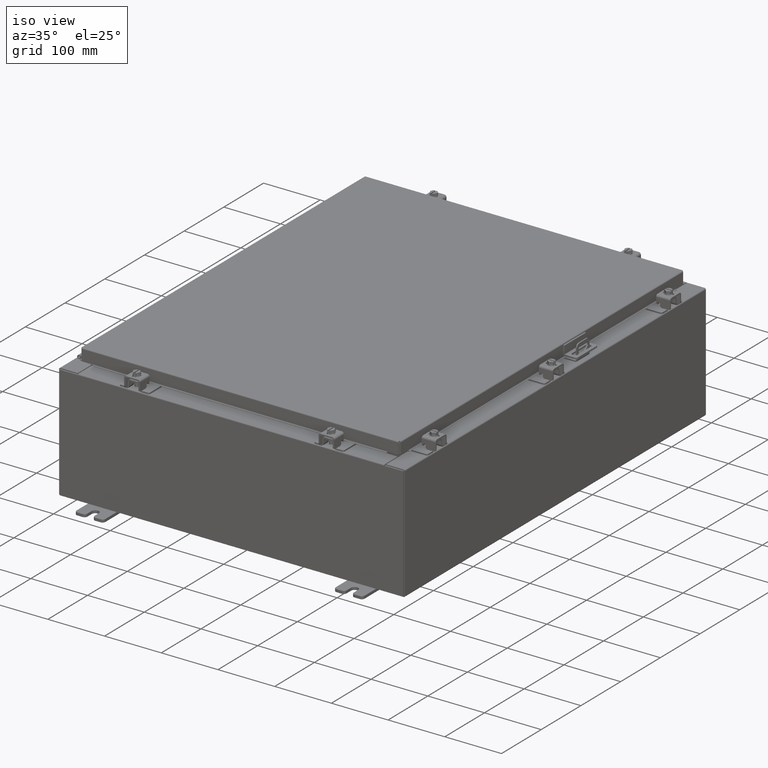
[diagram: clean part render]
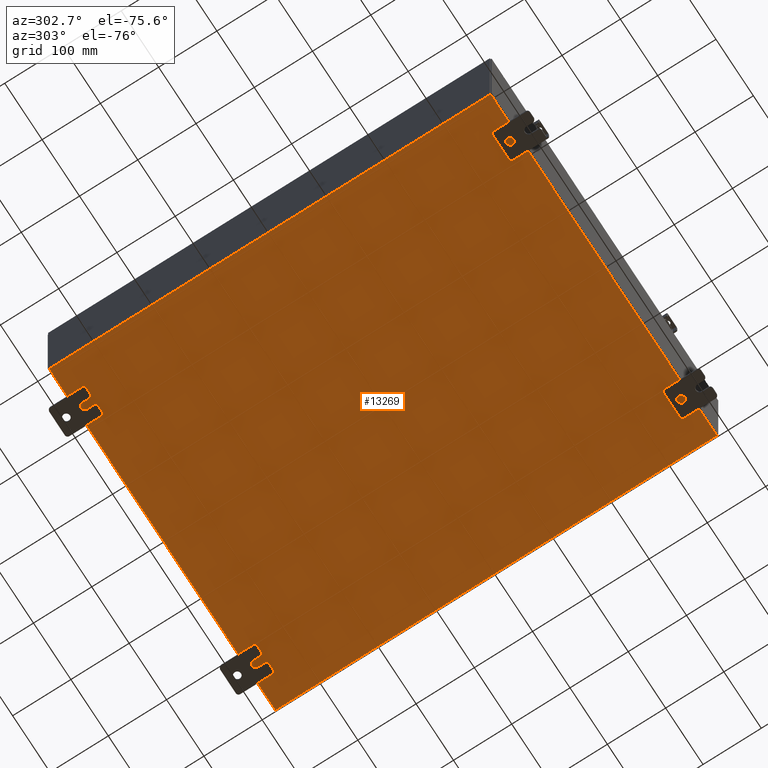
[diagram: tour spotlight — one face highlighted and labeled with its STEP entity id]
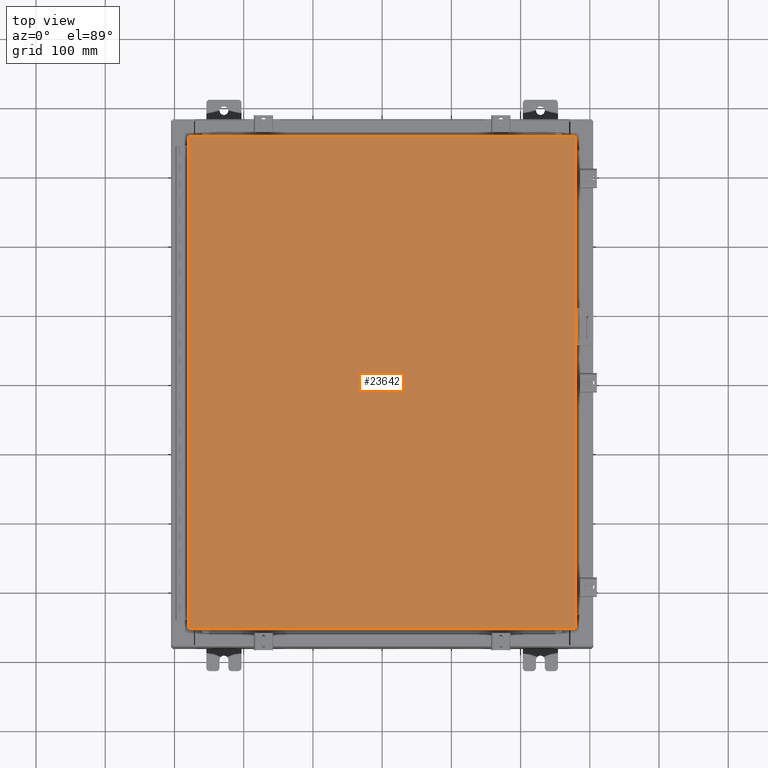
[diagram: tour spotlight — one face highlighted and labeled with its STEP entity id]
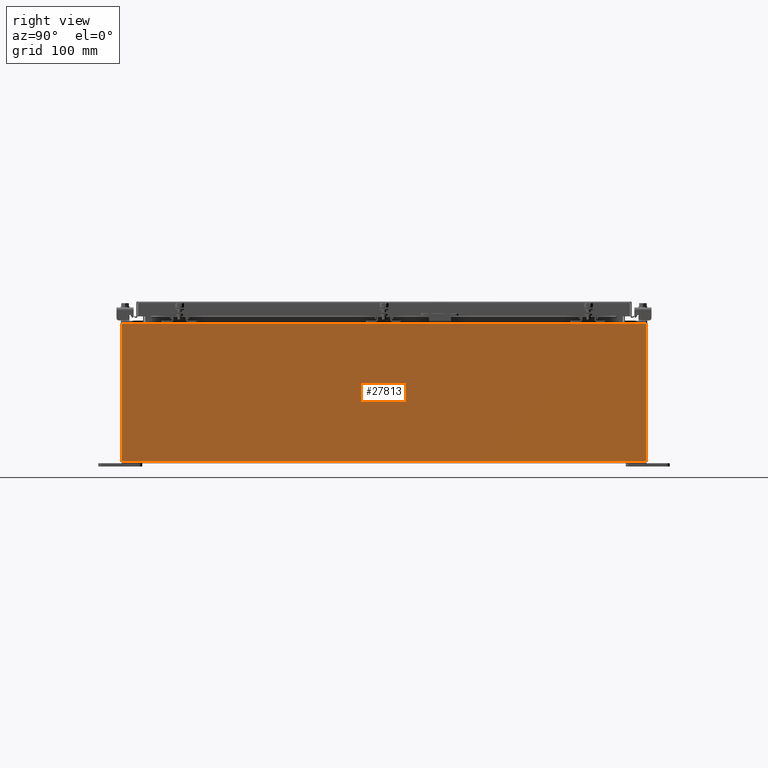
[diagram: tour spotlight — one face highlighted and labeled with its STEP entity id]
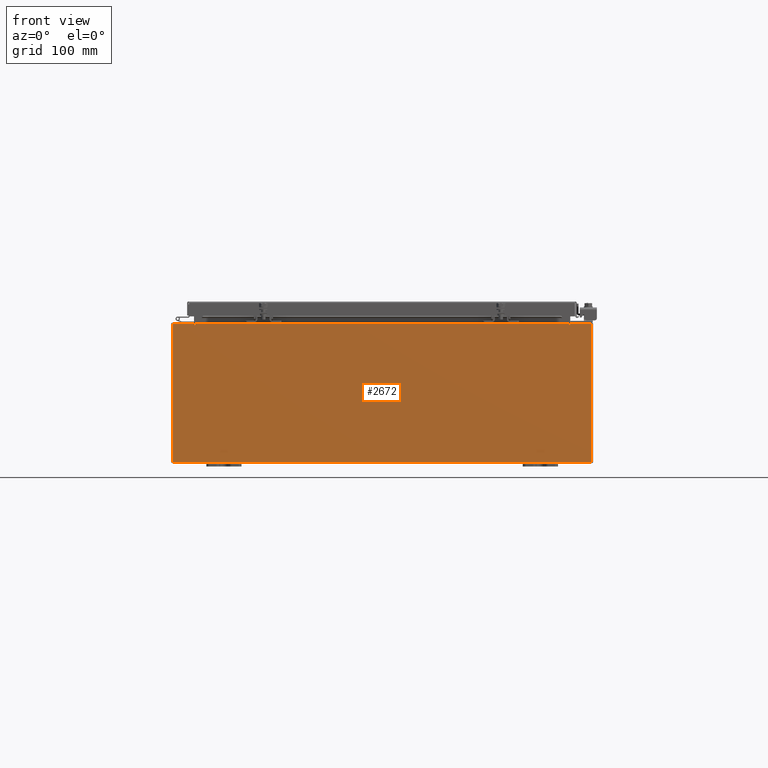
[diagram: tour spotlight — one face highlighted and labeled with its STEP entity id]
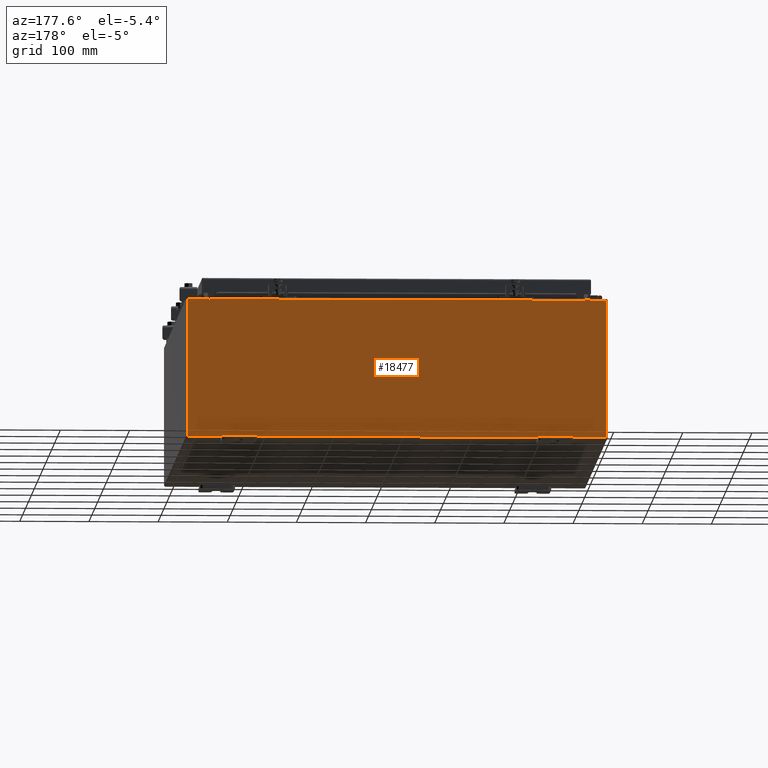
[diagram: tour spotlight — one face highlighted and labeled with its STEP entity id]
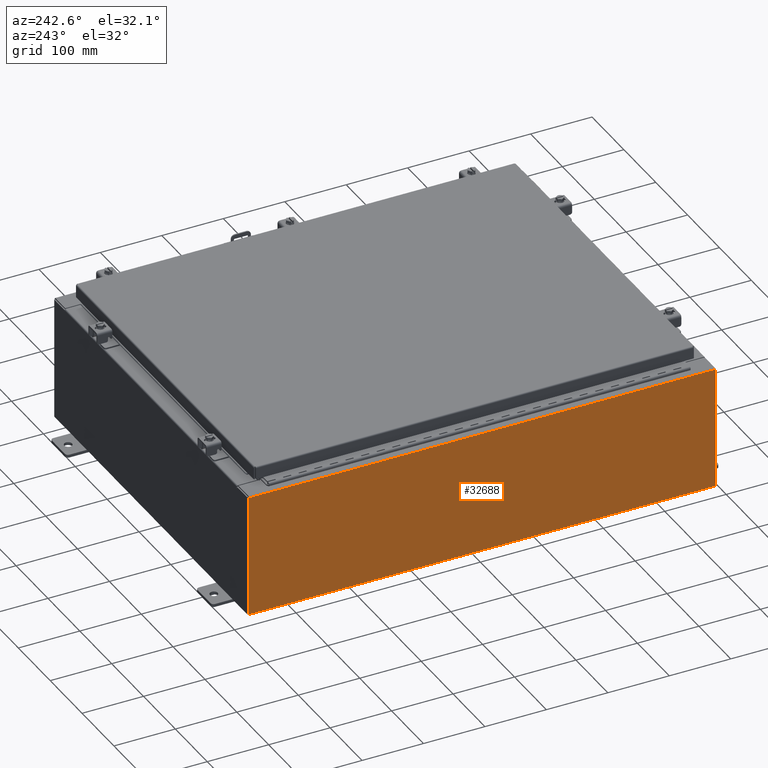
[diagram: tour spotlight — one face highlighted and labeled with its STEP entity id]
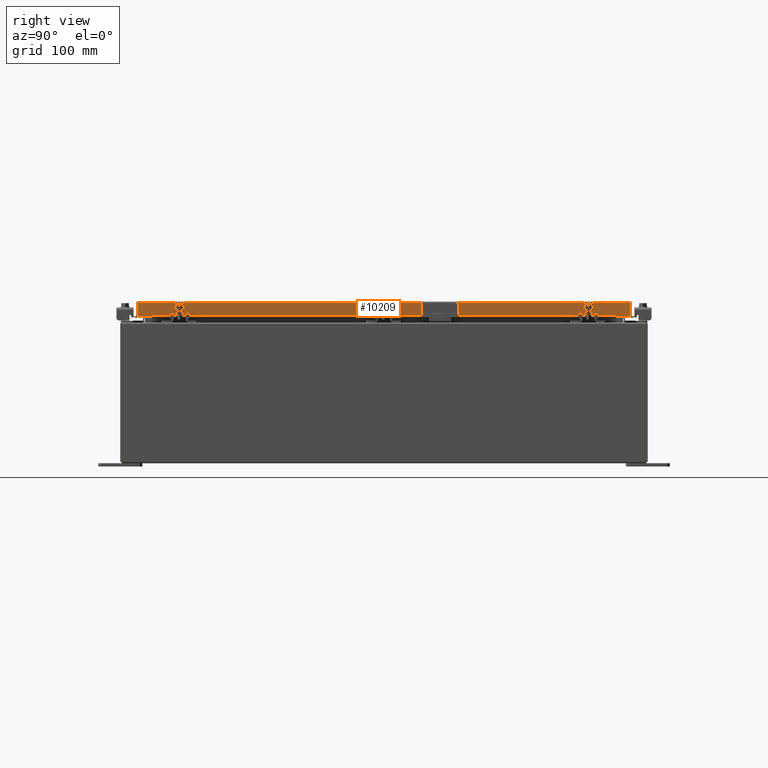
[diagram: tour spotlight — one face highlighted and labeled with its STEP entity id]
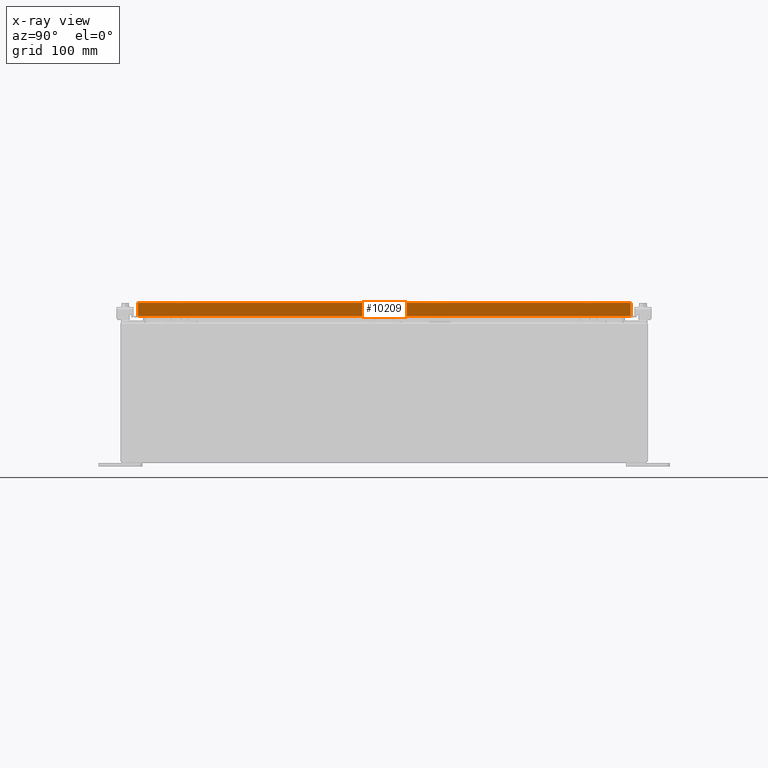
[diagram: x-ray of the same camera — body ghosted, this tour face saturated]
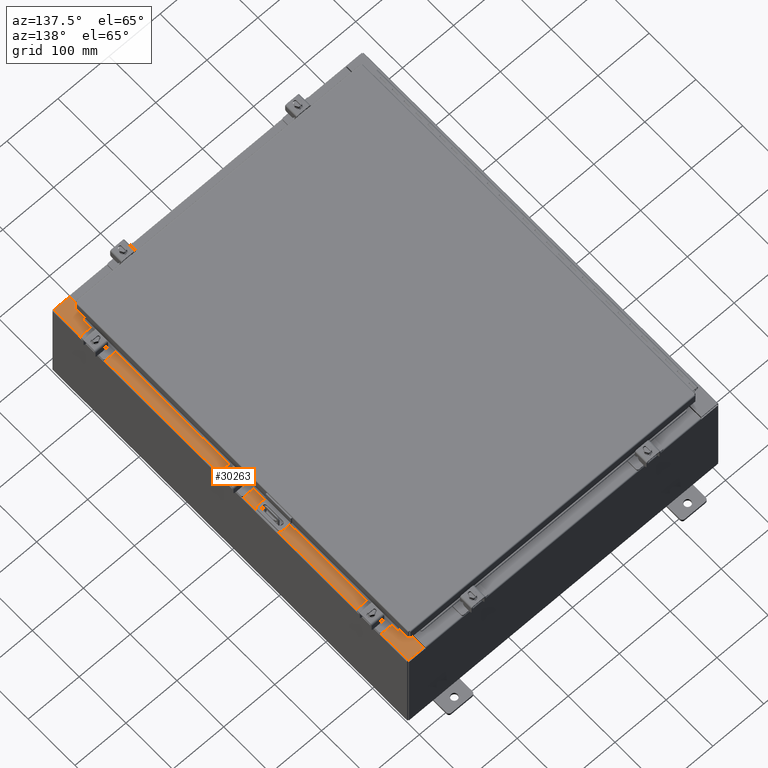
[diagram: tour spotlight — one face highlighted and labeled with its STEP entity id]
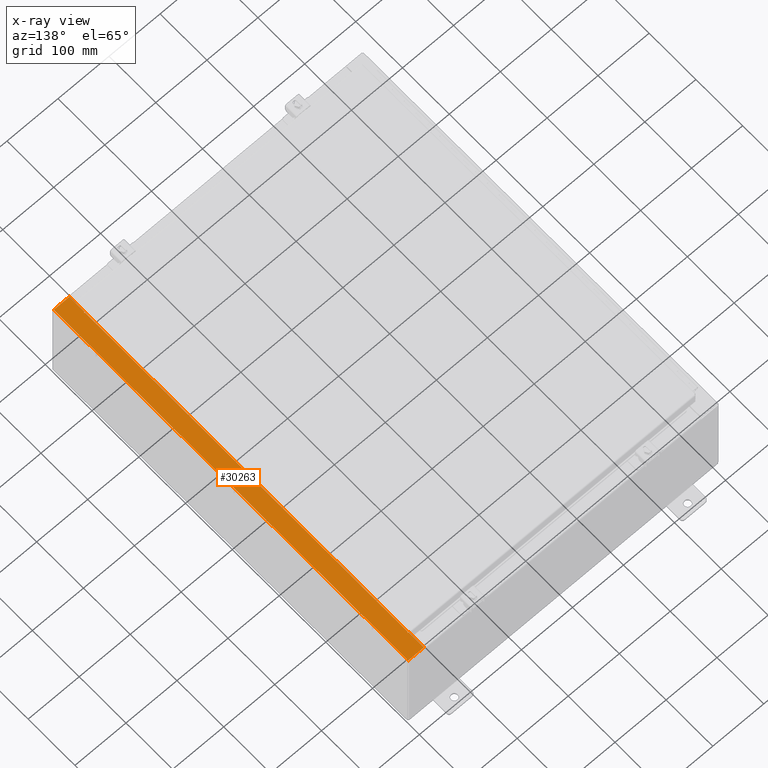
[diagram: x-ray of the same camera — body ghosted, this tour face saturated]
A machine part: a face-by-face anatomy tour. The part has 1990 B-rep faces; the first image is the clean iso view, then the 8 largest visible faces are spotlighted one at a time (largest first), each with its STEP entity span.

Face 1 — auxiliary view, entity #13269. In plain terms, the highlighted planar face has unit normal (0, 0, -1).
Definition (entity closure, byte-faithful):
#5635 = VECTOR ( 'NONE', #18119, 39.37007874015748100 ) ;
#7331 = VECTOR ( 'NONE', #32122, 39.37007874015748100 ) ;
#7362 = VERTEX_POINT ( 'NONE', #33863 ) ;
#7889 = FACE_OUTER_BOUND ( 'NONE', #21383, .T. ) ;
#8225 = LINE ( 'NONE', #36847, #7331 ) ;
#8766 = CARTESIAN_POINT ( 'NONE',  ( 0.0000000000000000000, 0.0000000000000000000, -0.07470000000000000300 ) ) ;
#9982 = ORIENTED_EDGE ( 'NONE', *, *, #27992, .F. ) ;
#11927 = DIRECTION ( 'NONE',  ( 1.000000000000000000, 0.0000000000000000000, 0.0000000000000000000 ) ) ;
#13269 = ADVANCED_FACE ( 'NONE', ( #7889 ), #26249, .T. ) ;
#13560 = LINE ( 'NONE', #26574, #27247 ) ;
#15827 = CARTESIAN_POINT ( 'NONE',  ( 11.91229999999999700, 14.92530000000000000, -0.07470000000000226500 ) ) ;
#16068 = CARTESIAN_POINT ( 'NONE',  ( 11.91229999999998800, -14.92530000000000000, -0.07470000000000000300 ) ) ;
#16945 = CARTESIAN_POINT ( 'NONE',  ( -11.91230000000000500, 14.92530000000000000, -0.07470000000000000300 ) ) ;
#18119 = DIRECTION ( 'NONE',  ( -1.000000000000000000, -0.0000000000000000000, -0.0000000000000000000 ) ) ;
#18244 = CARTESIAN_POINT ( 'NONE',  ( -12.00000000000000500, 14.92530000000000000, -0.07470000000000000300 ) ) ;
#18343 = ORIENTED_EDGE ( 'NONE', *, *, #34294, .T. ) ;
#18700 = VERTEX_POINT ( 'NONE', #16068 ) ;
#19879 = CARTESIAN_POINT ( 'NONE',  ( 11.91229999999999700, 14.92530000000000000, -0.07470000000000226500 ) ) ;
#19899 = EDGE_CURVE ( 'NONE', #7362, #25669, #8225, .T. ) ;
#21383 = EDGE_LOOP ( 'NONE', ( #31003, #37043, #9982, #18343 ) ) ;
#25669 = VERTEX_POINT ( 'NONE', #16945 ) ;
#26133 = DIRECTION ( 'NONE',  ( -1.000000000000000000, 0.0000000000000000000, -0.0000000000000000000 ) ) ;
#26248 = AXIS2_PLACEMENT_3D ( 'NONE', #8766, #29076, #26133 ) ;
#26249 = PLANE ( 'NONE',  #26248 ) ;
#26574 = CARTESIAN_POINT ( 'NONE',  ( -12.00000000000000500, -14.92530000000000000, -0.07470000000000000300 ) ) ;
#27247 = VECTOR ( 'NONE', #11927, 39.37007874015748100 ) ;
#27992 = EDGE_CURVE ( 'NONE', #28855, #25669, #35626, .T. ) ;
#28855 = VERTEX_POINT ( 'NONE', #15827 ) ;
#29076 = DIRECTION ( 'NONE',  ( 0.0000000000000000000, 0.0000000000000000000, -1.000000000000000000 ) ) ;
#31003 = ORIENTED_EDGE ( 'NONE', *, *, #32423, .F. ) ;
#32122 = DIRECTION ( 'NONE',  ( -0.0000000000000000000, 1.000000000000000000, -0.0000000000000000000 ) ) ;
#32423 = EDGE_CURVE ( 'NONE', #7362, #18700, #13560, .T. ) ;
#33863 = CARTESIAN_POINT ( 'NONE',  ( -11.91230000000000500, -14.92530000000000000, -0.07469999999999994700 ) ) ;
#34294 = EDGE_CURVE ( 'NONE', #28855, #18700, #36650, .T. ) ;
#35626 = LINE ( 'NONE', #18244, #5635 ) ;
#35790 = VECTOR ( 'NONE', #37293, 39.37007874015748100 ) ;
#36650 = LINE ( 'NONE', #19879, #35790 ) ;
#36847 = CARTESIAN_POINT ( 'NONE',  ( -11.91230000000000500, -14.92530000000000000, -0.07469999999999994700 ) ) ;
#37043 = ORIENTED_EDGE ( 'NONE', *, *, #19899, .T. ) ;
#37293 = DIRECTION ( 'NONE',  ( -0.0000000000000000000, -1.000000000000000000, 8.208677865577646300E-017 ) ) ;

Face 2 — top view, entity #23642. In plain terms, the highlighted planar face has unit normal (0, 0, -1).
Definition (entity closure, byte-faithful):
#1846 = DIRECTION ( 'NONE',  ( 1.000000000000000000, -0.0000000000000000000, -0.0000000000000000000 ) ) ;
#3510 = CARTESIAN_POINT ( 'NONE',  ( 10.99030000000000000, -14.00629999999999800, -2.048885995248197400E-016 ) ) ;
#4643 = CARTESIAN_POINT ( 'NONE',  ( -10.99030000000000000, 14.00630000000000100, -2.048885995248197400E-016 ) ) ;
#4808 = ORIENTED_EDGE ( 'NONE', *, *, #12048, .T. ) ;
#4845 = EDGE_LOOP ( 'NONE', ( #4808, #22974, #30911, #36598 ) ) ;
#4901 = VECTOR ( 'NONE', #19019, 39.37007874015748100 ) ;
#5202 = CARTESIAN_POINT ( 'NONE',  ( -10.99029999999999800, -14.00629999999999800, -2.048885995248197400E-016 ) ) ;
#5971 = CARTESIAN_POINT ( 'NONE',  ( 0.0000000000000000000, 0.0000000000000000000, 0.0000000000000000000 ) ) ;
#6256 = CARTESIAN_POINT ( 'NONE',  ( -10.99030000000000000, 14.00630000000000100, -2.048885995248197400E-016 ) ) ;
#6614 = VECTOR ( 'NONE', #12503, 39.37007874015748100 ) ;
#6708 = VERTEX_POINT ( 'NONE', #3510 ) ;
#7438 = LINE ( 'NONE', #31551, #29696 ) ;
#7807 = VECTOR ( 'NONE', #1846, 39.37007874015748100 ) ;
#8172 = EDGE_CURVE ( 'NONE', #6708, #36905, #37440, .T. ) ;
#11165 = DIRECTION ( 'NONE',  ( -1.000000000000000000, -0.0000000000000000000, -0.0000000000000000000 ) ) ;
#11711 = CARTESIAN_POINT ( 'NONE',  ( 10.99030000000000000, 14.00629999999999800, -2.048885995248197400E-016 ) ) ;
#12048 = EDGE_CURVE ( 'NONE', #34667, #6708, #17255, .T. ) ;
#12503 = DIRECTION ( 'NONE',  ( 0.0000000000000000000, 1.000000000000000000, 0.0000000000000000000 ) ) ;
#16015 = CARTESIAN_POINT ( 'NONE',  ( -10.99029999999999600, -14.00629999999999800, -2.219626494852214000E-016 ) ) ;
#17255 = LINE ( 'NONE', #16015, #7807 ) ;
#17270 = DIRECTION ( 'NONE',  ( -1.000000000000000000, 0.0000000000000000000, -0.0000000000000000000 ) ) ;
#19019 = DIRECTION ( 'NONE',  ( 0.0000000000000000000, -1.000000000000000000, 0.0000000000000000000 ) ) ;
#20265 = LINE ( 'NONE', #4643, #4901 ) ;
#22749 = PLANE ( 'NONE',  #30798 ) ;
#22892 = FACE_OUTER_BOUND ( 'NONE', #4845, .T. ) ;
#22974 = ORIENTED_EDGE ( 'NONE', *, *, #8172, .T. ) ;
#23642 = ADVANCED_FACE ( 'NONE', ( #22892 ), #22749, .F. ) ;
#25485 = EDGE_CURVE ( 'NONE', #25659, #34667, #20265, .T. ) ;
#25659 = VERTEX_POINT ( 'NONE', #6256 ) ;
#26103 = CARTESIAN_POINT ( 'NONE',  ( 10.99030000000000000, -14.00629999999999800, -2.048885995248197400E-016 ) ) ;
#26237 = DIRECTION ( 'NONE',  ( 0.0000000000000000000, 0.0000000000000000000, -1.000000000000000000 ) ) ;
#27922 = EDGE_CURVE ( 'NONE', #36905, #25659, #7438, .T. ) ;
#29696 = VECTOR ( 'NONE', #11165, 39.37007874015748100 ) ;
#30798 = AXIS2_PLACEMENT_3D ( 'NONE', #5971, #26237, #17270 ) ;
#30911 = ORIENTED_EDGE ( 'NONE', *, *, #27922, .T. ) ;
#31551 = CARTESIAN_POINT ( 'NONE',  ( 10.99030000000000000, 14.00629999999999800, -2.048885995248197400E-016 ) ) ;
#34667 = VERTEX_POINT ( 'NONE', #5202 ) ;
#36598 = ORIENTED_EDGE ( 'NONE', *, *, #25485, .T. ) ;
#36905 = VERTEX_POINT ( 'NONE', #11711 ) ;
#37440 = LINE ( 'NONE', #26103, #6614 ) ;

Face 3 — right view, entity #27813. In plain terms, the highlighted planar face has unit normal (-1, 0, 0).
Definition (entity closure, byte-faithful):
#230 = DIRECTION ( 'NONE',  ( 3.584876173029202900E-015, 0.0000000000000000000, 1.000000000000000000 ) ) ;
#2361 = VECTOR ( 'NONE', #17244, 39.37007874015748100 ) ;
#3961 = CARTESIAN_POINT ( 'NONE',  ( 12.00000000000002500, 14.92530000000000200, 7.837599999999992100 ) ) ;
#5976 = CARTESIAN_POINT ( 'NONE',  ( 11.99999999999999600, 0.0000000000000000000, -4.327932773236200000E-014 ) ) ;
#7873 = ORIENTED_EDGE ( 'NONE', *, *, #12077, .T. ) ;
#7881 = VECTOR ( 'NONE', #29414, 39.37007874015748100 ) ;
#8873 = DIRECTION ( 'NONE',  ( -1.000000000000000000, 0.0000000000000000000, 3.584876173029202900E-015 ) ) ;
#9447 = VERTEX_POINT ( 'NONE', #36854 ) ;
#11954 = CARTESIAN_POINT ( 'NONE',  ( 11.99999999999999600, -14.92530000000000000, 0.01299999999999984700 ) ) ;
#12077 = EDGE_CURVE ( 'NONE', #17195, #24470, #30053, .T. ) ;
#12252 = EDGE_LOOP ( 'NONE', ( #25494, #7873, #32092, #36766 ) ) ;
#12488 = DIRECTION ( 'NONE',  ( -0.0000000000000000000, -1.000000000000000000, -0.0000000000000000000 ) ) ;
#13037 = EDGE_CURVE ( 'NONE', #9447, #17195, #14438, .T. ) ;
#13610 = VECTOR ( 'NONE', #31382, 39.37007874015748100 ) ;
#14438 = LINE ( 'NONE', #3961, #29982 ) ;
#16084 = AXIS2_PLACEMENT_3D ( 'NONE', #5976, #8873, #230 ) ;
#17195 = VERTEX_POINT ( 'NONE', #24434 ) ;
#17244 = DIRECTION ( 'NONE',  ( 3.584876173029202900E-015, 0.0000000000000000000, 1.000000000000000000 ) ) ;
#18381 = VERTEX_POINT ( 'NONE', #27469 ) ;
#18727 = FACE_OUTER_BOUND ( 'NONE', #12252, .T. ) ;
#20191 = CARTESIAN_POINT ( 'NONE',  ( 11.99999999999999600, 14.92530000000000000, -4.327932773236200000E-014 ) ) ;
#22010 = CARTESIAN_POINT ( 'NONE',  ( 11.99999999999999600, -14.92530000000000000, 0.01299999999999996600 ) ) ;
#23253 = LINE ( 'NONE', #11954, #7881 ) ;
#23419 = PLANE ( 'NONE',  #16084 ) ;
#24434 = CARTESIAN_POINT ( 'NONE',  ( 12.00000000000002500, -14.92530000000000200, 7.837599999999998300 ) ) ;
#24470 = VERTEX_POINT ( 'NONE', #22010 ) ;
#25494 = ORIENTED_EDGE ( 'NONE', *, *, #13037, .T. ) ;
#26339 = LINE ( 'NONE', #20191, #2361 ) ;
#27469 = CARTESIAN_POINT ( 'NONE',  ( 11.99999999999999600, 14.92530000000000000, 0.01299999999999766100 ) ) ;
#27813 = ADVANCED_FACE ( 'NONE', ( #18727 ), #23419, .F. ) ;
#28415 = CARTESIAN_POINT ( 'NONE',  ( 11.99999999999999600, -14.92530000000000000, -4.327932773236200000E-014 ) ) ;
#29414 = DIRECTION ( 'NONE',  ( 2.624627117933885000E-031, -1.000000000000000000, 7.321388497823866900E-017 ) ) ;
#29982 = VECTOR ( 'NONE', #12488, 39.37007874015748100 ) ;
#30053 = LINE ( 'NONE', #28415, #13610 ) ;
#31382 = DIRECTION ( 'NONE',  ( -3.584876173029202900E-015, 0.0000000000000000000, -1.000000000000000000 ) ) ;
#32092 = ORIENTED_EDGE ( 'NONE', *, *, #36877, .F. ) ;
#32528 = EDGE_CURVE ( 'NONE', #18381, #9447, #26339, .T. ) ;
#36766 = ORIENTED_EDGE ( 'NONE', *, *, #32528, .T. ) ;
#36854 = CARTESIAN_POINT ( 'NONE',  ( 12.00000000000002500, 14.92530000000000200, 7.837599999999992100 ) ) ;
#36877 = EDGE_CURVE ( 'NONE', #18381, #24470, #23253, .T. ) ;

Face 4 — front view, entity #2672. In plain terms, the highlighted planar face has unit normal (-0, 1, -0).
Definition (entity closure, byte-faithful):
#1154 = LINE ( 'NONE', #8028, #15474 ) ;
#1478 = CARTESIAN_POINT ( 'NONE',  ( 10.67455000000000200, 0.0000000000000000000, 3.925299999999999600 ) ) ;
#2633 = EDGE_CURVE ( 'NONE', #3021, #32306, #28512, .T. ) ;
#2672 = ADVANCED_FACE ( 'NONE', ( #35375 ), #5273, .F. ) ;
#2721 = ORIENTED_EDGE ( 'NONE', *, *, #34312, .F. ) ;
#3021 = VERTEX_POINT ( 'NONE', #27038 ) ;
#3199 = LINE ( 'NONE', #19807, #32225 ) ;
#3604 = EDGE_CURVE ( 'NONE', #21469, #30533, #33473, .T. ) ;
#4362 = EDGE_CURVE ( 'NONE', #19060, #3021, #15594, .T. ) ;
#4876 = DIRECTION ( 'NONE',  ( 0.0000000000000000000, 0.0000000000000000000, -1.000000000000000000 ) ) ;
#5273 = PLANE ( 'NONE',  #12994 ) ;
#5394 = VECTOR ( 'NONE', #19560, 39.37007874015748100 ) ;
#5431 = DIRECTION ( 'NONE',  ( -0.0000000000000000000, 1.000000000000000000, -0.0000000000000000000 ) ) ;
#5457 = VERTEX_POINT ( 'NONE', #35036 ) ;
#6196 = CARTESIAN_POINT ( 'NONE',  ( 10.63720000000000400, 0.0000000000000000000, 3.912299999999999700 ) ) ;
#7035 = ORIENTED_EDGE ( 'NONE', *, *, #3604, .F. ) ;
#7790 = AXIS2_PLACEMENT_3D ( 'NONE', #23451, #5431, #24139 ) ;
#8028 = CARTESIAN_POINT ( 'NONE',  ( -10.63720000000000400, -0.0000000000000000000, 0.0000000000000000000 ) ) ;
#8806 = CARTESIAN_POINT ( 'NONE',  ( -10.65587500000000200, 0.0000000000000000000, 3.874949999999999700 ) ) ;
#9075 = DIRECTION ( 'NONE',  ( 1.000000000000000000, 0.0000000000000000000, 0.0000000000000000000 ) ) ;
#9316 = EDGE_CURVE ( 'NONE', #12634, #32306, #22858, .T. ) ;
#10364 = EDGE_CURVE ( 'NONE', #14581, #19060, #1154, .T. ) ;
#10421 = EDGE_LOOP ( 'NONE', ( #11444, #18464, #31845, #31813, #21507, #7035, #2721, #31294, #20642, #24093, #20850, #33661 ) ) ;
#10711 = VERTEX_POINT ( 'NONE', #32143 ) ;
#10754 = CARTESIAN_POINT ( 'NONE',  ( 10.67455000000000200, 0.0000000000000000000, 3.874949999999999700 ) ) ;
#11031 = VERTEX_POINT ( 'NONE', #1478 ) ;
#11444 = ORIENTED_EDGE ( 'NONE', *, *, #2633, .F. ) ;
#11526 = CARTESIAN_POINT ( 'NONE',  ( 10.63720000000000400, 0.0000000000000000000, 3.874949999999999700 ) ) ;
#11632 = DIRECTION ( 'NONE',  ( 0.0000000000000000000, 0.0000000000000000000, -1.000000000000000000 ) ) ;
#11639 = VECTOR ( 'NONE', #14642, 39.37007874015748100 ) ;
#12239 = EDGE_CURVE ( 'NONE', #5457, #31998, #31420, .T. ) ;
#12526 = LINE ( 'NONE', #20259, #11639 ) ;
#12634 = VERTEX_POINT ( 'NONE', #19258 ) ;
#12944 = VECTOR ( 'NONE', #16364, 39.37007874015748100 ) ;
#12994 = AXIS2_PLACEMENT_3D ( 'NONE', #30691, #34739, #21120 ) ;
#13682 = VECTOR ( 'NONE', #9075, 39.37007874015748100 ) ;
#14581 = VERTEX_POINT ( 'NONE', #28376 ) ;
#14642 = DIRECTION ( 'NONE',  ( -4.340572780400004900E-014, 0.0000000000000000000, -1.000000000000000000 ) ) ;
#15474 = VECTOR ( 'NONE', #4876, 39.37007874015748100 ) ;
#15594 = CIRCLE ( 'NONE', #33539, 0.01867499999999949400 ) ;
#15856 = VECTOR ( 'NONE', #16874, 39.37007874015748100 ) ;
#16364 = DIRECTION ( 'NONE',  ( 0.0000000000000000000, 0.0000000000000000000, 1.000000000000000000 ) ) ;
#16447 = VECTOR ( 'NONE', #36821, 39.37007874015748100 ) ;
#16874 = DIRECTION ( 'NONE',  ( -1.000000000000000000, -0.0000000000000000000, -0.0000000000000000000 ) ) ;
#17443 = EDGE_CURVE ( 'NONE', #31998, #12634, #24236, .T. ) ;
#18464 = ORIENTED_EDGE ( 'NONE', *, *, #4362, .F. ) ;
#18608 = EDGE_CURVE ( 'NONE', #11031, #10711, #26936, .T. ) ;
#18985 = CARTESIAN_POINT ( 'NONE',  ( -11.92530000000000000, 0.0000000000000000000, -3.925299999999999600 ) ) ;
#19060 = VERTEX_POINT ( 'NONE', #20727 ) ;
#19258 = CARTESIAN_POINT ( 'NONE',  ( -11.92530000000000000, 0.0000000000000000000, 3.925299999999999600 ) ) ;
#19319 = CARTESIAN_POINT ( 'NONE',  ( -10.67455000000000200, -0.0000000000000000000, 0.0000000000000000000 ) ) ;
#19560 = DIRECTION ( 'NONE',  ( 0.0000000000000000000, 0.0000000000000000000, 1.000000000000000000 ) ) ;
#19807 = CARTESIAN_POINT ( 'NONE',  ( 11.92530000000000000, 0.0000000000000000000, 3.925299999999999600 ) ) ;
#20259 = CARTESIAN_POINT ( 'NONE',  ( 10.67454999999983300, -0.0000000000000000000, -4.633366117301815000E-013 ) ) ;
#20642 = ORIENTED_EDGE ( 'NONE', *, *, #21362, .T. ) ;
#20727 = CARTESIAN_POINT ( 'NONE',  ( -10.63720000000000400, -0.0000000000000000000, 3.874949999999999700 ) ) ;
#20850 = ORIENTED_EDGE ( 'NONE', *, *, #17443, .T. ) ;
#21120 = DIRECTION ( 'NONE',  ( 0.0000000000000000000, -0.0000000000000000000, -1.000000000000000000 ) ) ;
#21362 = EDGE_CURVE ( 'NONE', #10711, #5457, #3199, .T. ) ;
#21469 = VERTEX_POINT ( 'NONE', #10754 ) ;
#21507 = ORIENTED_EDGE ( 'NONE', *, *, #22978, .F. ) ;
#22700 = CARTESIAN_POINT ( 'NONE',  ( -11.92530000000000000, 0.0000000000000000000, 3.925299999999999600 ) ) ;
#22858 = LINE ( 'NONE', #24627, #29740 ) ;
#22978 = EDGE_CURVE ( 'NONE', #30533, #29326, #36180, .T. ) ;
#23352 = DIRECTION ( 'NONE',  ( 0.0000000000000000000, 0.0000000000000000000, -1.000000000000000000 ) ) ;
#23451 = CARTESIAN_POINT ( 'NONE',  ( 10.65587500000000200, 0.0000000000000000000, 3.874949999999999700 ) ) ;
#24093 = ORIENTED_EDGE ( 'NONE', *, *, #12239, .T. ) ;
#24139 = DIRECTION ( 'NONE',  ( 0.0000000000000000000, 0.0000000000000000000, -1.000000000000000000 ) ) ;
#24236 = LINE ( 'NONE', #22700, #16447 ) ;
#24350 = DIRECTION ( 'NONE',  ( -0.0000000000000000000, 1.000000000000000000, -0.0000000000000000000 ) ) ;
#24627 = CARTESIAN_POINT ( 'NONE',  ( -11.92530000000000000, 0.0000000000000000000, 3.925299999999999600 ) ) ;
#26485 = CARTESIAN_POINT ( 'NONE',  ( -11.92530000000000000, 0.0000000000000000000, -3.925299999999999600 ) ) ;
#26936 = LINE ( 'NONE', #28085, #33776 ) ;
#27038 = CARTESIAN_POINT ( 'NONE',  ( -10.67455000000000200, 0.0000000000000000000, 3.874949999999999700 ) ) ;
#28085 = CARTESIAN_POINT ( 'NONE',  ( -11.92530000000000000, 0.0000000000000000000, 3.925299999999999600 ) ) ;
#28376 = CARTESIAN_POINT ( 'NONE',  ( -10.63720000000000400, 1.024442997624098700E-016, 3.912299999999999700 ) ) ;
#28512 = LINE ( 'NONE', #19319, #5394 ) ;
#29211 = LINE ( 'NONE', #29279, #13682 ) ;
#29279 = CARTESIAN_POINT ( 'NONE',  ( -10.63720000000000400, 1.024442997624098700E-016, 3.912299999999999700 ) ) ;
#29326 = VERTEX_POINT ( 'NONE', #6196 ) ;
#29740 = VECTOR ( 'NONE', #30470, 39.37007874015748100 ) ;
#30470 = DIRECTION ( 'NONE',  ( 1.000000000000000000, 0.0000000000000000000, 0.0000000000000000000 ) ) ;
#30533 = VERTEX_POINT ( 'NONE', #11526 ) ;
#30691 = CARTESIAN_POINT ( 'NONE',  ( 0.0000000000000000000, 0.0000000000000000000, 0.0000000000000000000 ) ) ;
#31294 = ORIENTED_EDGE ( 'NONE', *, *, #18608, .T. ) ;
#31420 = LINE ( 'NONE', #18985, #15856 ) ;
#31813 = ORIENTED_EDGE ( 'NONE', *, *, #36891, .T. ) ;
#31845 = ORIENTED_EDGE ( 'NONE', *, *, #10364, .F. ) ;
#31998 = VERTEX_POINT ( 'NONE', #26485 ) ;
#32143 = CARTESIAN_POINT ( 'NONE',  ( 11.92530000000000000, 0.0000000000000000000, 3.925299999999999600 ) ) ;
#32225 = VECTOR ( 'NONE', #23352, 39.37007874015748100 ) ;
#32306 = VERTEX_POINT ( 'NONE', #33813 ) ;
#33473 = CIRCLE ( 'NONE', #7790, 0.01867499999999949400 ) ;
#33539 = AXIS2_PLACEMENT_3D ( 'NONE', #8806, #24350, #11632 ) ;
#33661 = ORIENTED_EDGE ( 'NONE', *, *, #9316, .T. ) ;
#33776 = VECTOR ( 'NONE', #34223, 39.37007874015748100 ) ;
#33813 = CARTESIAN_POINT ( 'NONE',  ( -10.67455000000000200, 0.0000000000000000000, 3.925299999999999600 ) ) ;
#34223 = DIRECTION ( 'NONE',  ( 1.000000000000000000, 0.0000000000000000000, 0.0000000000000000000 ) ) ;
#34312 = EDGE_CURVE ( 'NONE', #11031, #21469, #12526, .T. ) ;
#34739 = DIRECTION ( 'NONE',  ( 0.0000000000000000000, -1.000000000000000000, 0.0000000000000000000 ) ) ;
#35036 = CARTESIAN_POINT ( 'NONE',  ( 11.92530000000000000, 0.0000000000000000000, -3.925299999999999600 ) ) ;
#35375 = FACE_OUTER_BOUND ( 'NONE', #10421, .T. ) ;
#36180 = LINE ( 'NONE', #36867, #12944 ) ;
#36821 = DIRECTION ( 'NONE',  ( -0.0000000000000000000, -0.0000000000000000000, 1.000000000000000000 ) ) ;
#36867 = CARTESIAN_POINT ( 'NONE',  ( 10.63720000000000400, 0.0000000000000000000, 0.0000000000000000000 ) ) ;
#36891 = EDGE_CURVE ( 'NONE', #14581, #29326, #29211, .T. ) ;

Face 5 — auxiliary view, entity #18477. In plain terms, the highlighted planar face has unit normal (0, -1, 0).
Definition (entity closure, byte-faithful):
#256 = LINE ( 'NONE', #34091, #36915 ) ;
#951 = DIRECTION ( 'NONE',  ( 0.0000000000000000000, 0.0000000000000000000, 1.000000000000000000 ) ) ;
#1044 = DIRECTION ( 'NONE',  ( 1.000000000000000000, 0.0000000000000000000, 0.0000000000000000000 ) ) ;
#1291 = LINE ( 'NONE', #31970, #31164 ) ;
#1428 = EDGE_CURVE ( 'NONE', #13307, #13733, #8654, .T. ) ;
#1634 = LINE ( 'NONE', #22106, #11022 ) ;
#2489 = CARTESIAN_POINT ( 'NONE',  ( -11.92530000000000000, 0.0000000000000000000, 3.925299999999999600 ) ) ;
#2513 = DIRECTION ( 'NONE',  ( -4.340572780400004900E-014, 0.0000000000000000000, -1.000000000000000000 ) ) ;
#4154 = CARTESIAN_POINT ( 'NONE',  ( -10.63720000000000400, -0.0000000000000000000, 3.874949999999999700 ) ) ;
#4268 = DIRECTION ( 'NONE',  ( 0.0000000000000000000, 0.0000000000000000000, -1.000000000000000000 ) ) ;
#4355 = CARTESIAN_POINT ( 'NONE',  ( -10.63720000000000400, 1.024442997624098700E-016, 3.912299999999999700 ) ) ;
#4973 = VERTEX_POINT ( 'NONE', #27342 ) ;
#4975 = LINE ( 'NONE', #17163, #12603 ) ;
#5021 = EDGE_CURVE ( 'NONE', #31921, #17354, #35923, .T. ) ;
#5023 = EDGE_CURVE ( 'NONE', #17354, #24998, #20405, .T. ) ;
#5405 = AXIS2_PLACEMENT_3D ( 'NONE', #24063, #35680, #21137 ) ;
#5853 = EDGE_CURVE ( 'NONE', #24998, #11751, #4975, .T. ) ;
#6421 = ORIENTED_EDGE ( 'NONE', *, *, #5023, .F. ) ;
#6642 = CARTESIAN_POINT ( 'NONE',  ( 10.67455000000000200, 0.0000000000000000000, 3.874949999999999700 ) ) ;
#6734 = VERTEX_POINT ( 'NONE', #4154 ) ;
#7124 = CARTESIAN_POINT ( 'NONE',  ( 10.63720000000000400, 0.0000000000000000000, 3.912299999999999700 ) ) ;
#7441 = CARTESIAN_POINT ( 'NONE',  ( -11.92530000000000000, 0.0000000000000000000, 3.925299999999999600 ) ) ;
#7634 = CARTESIAN_POINT ( 'NONE',  ( 10.67454999999983300, -0.0000000000000000000, -4.633366117301815000E-013 ) ) ;
#8231 = DIRECTION ( 'NONE',  ( -0.0000000000000000000, -0.0000000000000000000, 1.000000000000000000 ) ) ;
#8361 = CARTESIAN_POINT ( 'NONE',  ( -11.92530000000000000, 0.0000000000000000000, -3.925299999999999600 ) ) ;
#8654 = LINE ( 'NONE', #10217, #29997 ) ;
#8662 = CARTESIAN_POINT ( 'NONE',  ( 10.65587500000000200, 0.0000000000000000000, 3.874949999999999700 ) ) ;
#9359 = ORIENTED_EDGE ( 'NONE', *, *, #35433, .T. ) ;
#9388 = CIRCLE ( 'NONE', #5405, 0.01867499999999949400 ) ;
#9461 = CARTESIAN_POINT ( 'NONE',  ( 10.67455000000000200, 0.0000000000000000000, 3.925299999999999600 ) ) ;
#9754 = EDGE_CURVE ( 'NONE', #4973, #24570, #1634, .T. ) ;
#10022 = EDGE_CURVE ( 'NONE', #37191, #4973, #256, .T. ) ;
#10118 = ORIENTED_EDGE ( 'NONE', *, *, #5853, .F. ) ;
#10217 = CARTESIAN_POINT ( 'NONE',  ( -10.67455000000000200, -0.0000000000000000000, 0.0000000000000000000 ) ) ;
#11022 = VECTOR ( 'NONE', #34215, 39.37007874015748100 ) ;
#11178 = VECTOR ( 'NONE', #1044, 39.37007874015748100 ) ;
#11751 = VERTEX_POINT ( 'NONE', #7124 ) ;
#12330 = EDGE_CURVE ( 'NONE', #25269, #6734, #28643, .T. ) ;
#12603 = VECTOR ( 'NONE', #951, 39.37007874015748100 ) ;
#12680 = VECTOR ( 'NONE', #2513, 39.37007874015748100 ) ;
#13207 = CARTESIAN_POINT ( 'NONE',  ( -11.92530000000000000, 0.0000000000000000000, 3.925299999999999600 ) ) ;
#13307 = VERTEX_POINT ( 'NONE', #18421 ) ;
#13733 = VERTEX_POINT ( 'NONE', #34961 ) ;
#13790 = VECTOR ( 'NONE', #28808, 39.37007874015748100 ) ;
#13824 = CARTESIAN_POINT ( 'NONE',  ( 0.0000000000000000000, 0.0000000000000000000, 0.0000000000000000000 ) ) ;
#13946 = ORIENTED_EDGE ( 'NONE', *, *, #5021, .F. ) ;
#14761 = EDGE_CURVE ( 'NONE', #23319, #13733, #26644, .T. ) ;
#14949 = ORIENTED_EDGE ( 'NONE', *, *, #19833, .T. ) ;
#15556 = DIRECTION ( 'NONE',  ( 0.0000000000000000000, 0.0000000000000000000, -1.000000000000000000 ) ) ;
#17163 = CARTESIAN_POINT ( 'NONE',  ( 10.63720000000000400, 0.0000000000000000000, 0.0000000000000000000 ) ) ;
#17354 = VERTEX_POINT ( 'NONE', #6642 ) ;
#18421 = CARTESIAN_POINT ( 'NONE',  ( -10.67455000000000200, 0.0000000000000000000, 3.874949999999999700 ) ) ;
#18477 = ADVANCED_FACE ( 'NONE', ( #30991 ), #19552, .F. ) ;
#19525 = LINE ( 'NONE', #7441, #25457 ) ;
#19552 = PLANE ( 'NONE',  #21683 ) ;
#19833 = EDGE_CURVE ( 'NONE', #24570, #23319, #19525, .T. ) ;
#20005 = CARTESIAN_POINT ( 'NONE',  ( -11.92530000000000000, 0.0000000000000000000, 3.925299999999999600 ) ) ;
#20405 = CIRCLE ( 'NONE', #30257, 0.01867499999999949400 ) ;
#21137 = DIRECTION ( 'NONE',  ( 0.0000000000000000000, 0.0000000000000000000, -1.000000000000000000 ) ) ;
#21683 = AXIS2_PLACEMENT_3D ( 'NONE', #13824, #28991, #25421 ) ;
#22106 = CARTESIAN_POINT ( 'NONE',  ( -11.92530000000000000, 0.0000000000000000000, -3.925299999999999600 ) ) ;
#22735 = EDGE_CURVE ( 'NONE', #6734, #13307, #9388, .T. ) ;
#23221 = DIRECTION ( 'NONE',  ( 0.0000000000000000000, 0.0000000000000000000, -1.000000000000000000 ) ) ;
#23319 = VERTEX_POINT ( 'NONE', #20005 ) ;
#23336 = EDGE_CURVE ( 'NONE', #25269, #11751, #1291, .T. ) ;
#24063 = CARTESIAN_POINT ( 'NONE',  ( -10.65587500000000200, 0.0000000000000000000, 3.874949999999999700 ) ) ;
#24570 = VERTEX_POINT ( 'NONE', #8361 ) ;
#24907 = ORIENTED_EDGE ( 'NONE', *, *, #23336, .T. ) ;
#24998 = VERTEX_POINT ( 'NONE', #26225 ) ;
#25269 = VERTEX_POINT ( 'NONE', #4355 ) ;
#25421 = DIRECTION ( 'NONE',  ( 0.0000000000000000000, -0.0000000000000000000, -1.000000000000000000 ) ) ;
#25457 = VECTOR ( 'NONE', #8231, 39.37007874015748100 ) ;
#26225 = CARTESIAN_POINT ( 'NONE',  ( 10.63720000000000400, 0.0000000000000000000, 3.874949999999999700 ) ) ;
#26427 = ORIENTED_EDGE ( 'NONE', *, *, #9754, .T. ) ;
#26644 = LINE ( 'NONE', #13207, #11178 ) ;
#26857 = ORIENTED_EDGE ( 'NONE', *, *, #1428, .F. ) ;
#27342 = CARTESIAN_POINT ( 'NONE',  ( 11.92530000000000000, 0.0000000000000000000, -3.925299999999999600 ) ) ;
#27348 = DIRECTION ( 'NONE',  ( 0.0000000000000000000, 0.0000000000000000000, 1.000000000000000000 ) ) ;
#28643 = LINE ( 'NONE', #31948, #35507 ) ;
#28808 = DIRECTION ( 'NONE',  ( 1.000000000000000000, 0.0000000000000000000, 0.0000000000000000000 ) ) ;
#28991 = DIRECTION ( 'NONE',  ( 0.0000000000000000000, -1.000000000000000000, 0.0000000000000000000 ) ) ;
#29628 = ORIENTED_EDGE ( 'NONE', *, *, #12330, .F. ) ;
#29814 = ORIENTED_EDGE ( 'NONE', *, *, #10022, .T. ) ;
#29997 = VECTOR ( 'NONE', #27348, 39.37007874015748100 ) ;
#30257 = AXIS2_PLACEMENT_3D ( 'NONE', #8662, #30304, #4268 ) ;
#30304 = DIRECTION ( 'NONE',  ( -0.0000000000000000000, 1.000000000000000000, -0.0000000000000000000 ) ) ;
#30991 = FACE_OUTER_BOUND ( 'NONE', #35648, .T. ) ;
#31164 = VECTOR ( 'NONE', #34912, 39.37007874015748100 ) ;
#31921 = VERTEX_POINT ( 'NONE', #9461 ) ;
#31948 = CARTESIAN_POINT ( 'NONE',  ( -10.63720000000000400, -0.0000000000000000000, 0.0000000000000000000 ) ) ;
#31970 = CARTESIAN_POINT ( 'NONE',  ( -10.63720000000000400, 1.024442997624098700E-016, 3.912299999999999700 ) ) ;
#32481 = ORIENTED_EDGE ( 'NONE', *, *, #22735, .F. ) ;
#32557 = ORIENTED_EDGE ( 'NONE', *, *, #14761, .T. ) ;
#33635 = CARTESIAN_POINT ( 'NONE',  ( 11.92530000000000000, 0.0000000000000000000, 3.925299999999999600 ) ) ;
#34091 = CARTESIAN_POINT ( 'NONE',  ( 11.92530000000000000, 0.0000000000000000000, 3.925299999999999600 ) ) ;
#34215 = DIRECTION ( 'NONE',  ( -1.000000000000000000, -0.0000000000000000000, -0.0000000000000000000 ) ) ;
#34912 = DIRECTION ( 'NONE',  ( 1.000000000000000000, 0.0000000000000000000, 0.0000000000000000000 ) ) ;
#34961 = CARTESIAN_POINT ( 'NONE',  ( -10.67455000000000200, 0.0000000000000000000, 3.925299999999999600 ) ) ;
#35433 = EDGE_CURVE ( 'NONE', #31921, #37191, #36998, .T. ) ;
#35507 = VECTOR ( 'NONE', #23221, 39.37007874015748100 ) ;
#35648 = EDGE_LOOP ( 'NONE', ( #26857, #32481, #29628, #24907, #10118, #6421, #13946, #9359, #29814, #26427, #14949, #32557 ) ) ;
#35680 = DIRECTION ( 'NONE',  ( -0.0000000000000000000, 1.000000000000000000, -0.0000000000000000000 ) ) ;
#35923 = LINE ( 'NONE', #7634, #12680 ) ;
#36915 = VECTOR ( 'NONE', #15556, 39.37007874015748100 ) ;
#36998 = LINE ( 'NONE', #2489, #13790 ) ;
#37191 = VERTEX_POINT ( 'NONE', #33635 ) ;

Face 6 — auxiliary view, entity #32688. In plain terms, the highlighted planar face has unit normal (1, 0, 0).
Definition (entity closure, byte-faithful):
#1893 = VERTEX_POINT ( 'NONE', #10090 ) ;
#2186 = EDGE_CURVE ( 'NONE', #9906, #6298, #20783, .T. ) ;
#3085 = DIRECTION ( 'NONE',  ( 3.584876173029202900E-015, 0.0000000000000000000, -1.000000000000000000 ) ) ;
#3678 = FACE_OUTER_BOUND ( 'NONE', #19723, .T. ) ;
#4593 = DIRECTION ( 'NONE',  ( 0.0000000000000000000, 1.000000000000000000, 0.0000000000000000000 ) ) ;
#6298 = VERTEX_POINT ( 'NONE', #9354 ) ;
#6332 = VECTOR ( 'NONE', #30556, 39.37007874015748100 ) ;
#6453 = ORIENTED_EDGE ( 'NONE', *, *, #26717, .T. ) ;
#8748 = EDGE_CURVE ( 'NONE', #1893, #6298, #36151, .T. ) ;
#9346 = CARTESIAN_POINT ( 'NONE',  ( -12.00000000000000500, -14.92530000000000000, -4.327932773236203200E-014 ) ) ;
#9354 = CARTESIAN_POINT ( 'NONE',  ( -12.00000000000000500, 14.92530000000000000, 0.01299999999999983600 ) ) ;
#9906 = VERTEX_POINT ( 'NONE', #14935 ) ;
#10090 = CARTESIAN_POINT ( 'NONE',  ( -12.00000000000003400, 14.92530000000000000, 7.837599999999999200 ) ) ;
#11354 = ORIENTED_EDGE ( 'NONE', *, *, #8748, .T. ) ;
#12392 = VERTEX_POINT ( 'NONE', #14813 ) ;
#14486 = DIRECTION ( 'NONE',  ( -3.584876173029202900E-015, 0.0000000000000000000, 1.000000000000000000 ) ) ;
#14813 = CARTESIAN_POINT ( 'NONE',  ( -12.00000000000003400, -14.92530000000000000, 7.837599999999999200 ) ) ;
#14935 = CARTESIAN_POINT ( 'NONE',  ( -12.00000000000000500, -14.92530000000000000, 0.01299999999999984700 ) ) ;
#15555 = CARTESIAN_POINT ( 'NONE',  ( -12.00000000000000500, 0.0000000000000000000, -4.327932773236203200E-014 ) ) ;
#19386 = VECTOR ( 'NONE', #14486, 39.37007874015748100 ) ;
#19422 = PLANE ( 'NONE',  #25464 ) ;
#19722 = VECTOR ( 'NONE', #3085, 39.37007874015748100 ) ;
#19723 = EDGE_LOOP ( 'NONE', ( #6453, #11354, #21209, #33235 ) ) ;
#20783 = LINE ( 'NONE', #36475, #6332 ) ;
#21209 = ORIENTED_EDGE ( 'NONE', *, *, #2186, .F. ) ;
#21618 = DIRECTION ( 'NONE',  ( 1.000000000000000000, 0.0000000000000000000, 3.584876173029202900E-015 ) ) ;
#22456 = LINE ( 'NONE', #27562, #37001 ) ;
#25012 = EDGE_CURVE ( 'NONE', #9906, #12392, #27144, .T. ) ;
#25464 = AXIS2_PLACEMENT_3D ( 'NONE', #15555, #21618, #27225 ) ;
#26717 = EDGE_CURVE ( 'NONE', #12392, #1893, #22456, .T. ) ;
#27144 = LINE ( 'NONE', #9346, #19386 ) ;
#27225 = DIRECTION ( 'NONE',  ( 3.584876173029202900E-015, 0.0000000000000000000, -1.000000000000000000 ) ) ;
#27562 = CARTESIAN_POINT ( 'NONE',  ( -12.00000000000003400, -14.92530000000000000, 7.837599999999999200 ) ) ;
#30556 = DIRECTION ( 'NONE',  ( -0.0000000000000000000, 1.000000000000000000, -0.0000000000000000000 ) ) ;
#32688 = ADVANCED_FACE ( 'NONE', ( #3678 ), #19422, .F. ) ;
#33235 = ORIENTED_EDGE ( 'NONE', *, *, #25012, .T. ) ;
#34684 = CARTESIAN_POINT ( 'NONE',  ( -12.00000000000000500, 14.92530000000000000, -4.327932773236203200E-014 ) ) ;
#36151 = LINE ( 'NONE', #34684, #19722 ) ;
#36475 = CARTESIAN_POINT ( 'NONE',  ( -12.00000000000000500, 14.92530000000000000, 0.01299999999999984700 ) ) ;
#37001 = VECTOR ( 'NONE', #4593, 39.37007874015748100 ) ;

Face 7 — right view, entity #10209. An x-ray twin of the same camera follows (body ghosted, this face saturated) — the face is partly hidden behind the body. In plain terms, the highlighted planar face has unit normal (1, 0, 0).
Definition (entity closure, byte-faithful):
#857 = CARTESIAN_POINT ( 'NONE',  ( 11.07799999999999400, 13.25515786437627200, -0.8500000000000018700 ) ) ;
#1765 = LINE ( 'NONE', #3379, #15215 ) ;
#2526 = CARTESIAN_POINT ( 'NONE',  ( 11.07799999999999400, -13.25515786437626400, -0.8500000000000018700 ) ) ;
#3124 = VECTOR ( 'NONE', #18072, 39.37007874015748100 ) ;
#3246 = DIRECTION ( 'NONE',  ( 1.000000000000000000, 0.0000000000000000000, 2.818880942772360100E-015 ) ) ;
#3379 = CARTESIAN_POINT ( 'NONE',  ( 11.07800000000000300, -14.09399999999999900, -0.8499999999999996400 ) ) ;
#5399 = EDGE_CURVE ( 'NONE', #8288, #25368, #36745, .T. ) ;
#5651 = VERTEX_POINT ( 'NONE', #2526 ) ;
#5912 = VECTOR ( 'NONE', #28493, 39.37007874015748100 ) ;
#6198 = ORIENTED_EDGE ( 'NONE', *, *, #25932, .F. ) ;
#6625 = CARTESIAN_POINT ( 'NONE',  ( 11.07799999999999900, 14.00515786437626500, -0.08770000000000007000 ) ) ;
#6996 = DIRECTION ( 'NONE',  ( 2.818880942772360100E-015, 0.0000000000000000000, -1.000000000000000000 ) ) ;
#8288 = VERTEX_POINT ( 'NONE', #16432 ) ;
#8535 = CARTESIAN_POINT ( 'NONE',  ( 11.07799999999999400, 13.25515786437626500, -0.8500000000000018700 ) ) ;
#10209 = ADVANCED_FACE ( 'NONE', ( #15043 ), #24191, .T. ) ;
#10374 = CARTESIAN_POINT ( 'NONE',  ( 11.07800000000000300, -14.09399999999999900, -0.8499999999999996400 ) ) ;
#10717 = LINE ( 'NONE', #857, #3124 ) ;
#10746 = ORIENTED_EDGE ( 'NONE', *, *, #5399, .F. ) ;
#10915 = VECTOR ( 'NONE', #29531, 39.37007874015748100 ) ;
#11019 = VECTOR ( 'NONE', #34833, 39.37007874015748100 ) ;
#11796 = DIRECTION ( 'NONE',  ( -2.818880942772360100E-015, -6.982962677686265900E-015, 1.000000000000000000 ) ) ;
#11824 = LINE ( 'NONE', #31085, #10915 ) ;
#11942 = EDGE_CURVE ( 'NONE', #15877, #14985, #19092, .T. ) ;
#13721 = VERTEX_POINT ( 'NONE', #6625 ) ;
#14985 = VERTEX_POINT ( 'NONE', #31049 ) ;
#15043 = FACE_OUTER_BOUND ( 'NONE', #29627, .T. ) ;
#15215 = VECTOR ( 'NONE', #23712, 39.37007874015748100 ) ;
#15877 = VERTEX_POINT ( 'NONE', #19766 ) ;
#16432 = CARTESIAN_POINT ( 'NONE',  ( 11.07800000000000300, 14.00515786437627200, -0.8499999999999996400 ) ) ;
#17109 = ORIENTED_EDGE ( 'NONE', *, *, #34344, .F. ) ;
#18072 = DIRECTION ( 'NONE',  ( 0.0000000000000000000, -1.000000000000000000, 0.0000000000000000000 ) ) ;
#18731 = LINE ( 'NONE', #32851, #11019 ) ;
#19092 = LINE ( 'NONE', #30493, #25938 ) ;
#19766 = CARTESIAN_POINT ( 'NONE',  ( 11.07800000000000300, -14.00515786437626400, -0.8499999999999996400 ) ) ;
#23712 = DIRECTION ( 'NONE',  ( 0.0000000000000000000, -1.000000000000000000, 0.0000000000000000000 ) ) ;
#24191 = PLANE ( 'NONE',  #29171 ) ;
#24486 = EDGE_CURVE ( 'NONE', #8288, #13721, #18731, .T. ) ;
#25006 = CARTESIAN_POINT ( 'NONE',  ( 11.07799999999999900, 0.0000000000000000000, 3.148837674004379000E-014 ) ) ;
#25368 = VERTEX_POINT ( 'NONE', #8535 ) ;
#25518 = ORIENTED_EDGE ( 'NONE', *, *, #29291, .T. ) ;
#25932 = EDGE_CURVE ( 'NONE', #5651, #15877, #1765, .T. ) ;
#25938 = VECTOR ( 'NONE', #11796, 39.37007874015748100 ) ;
#28493 = DIRECTION ( 'NONE',  ( 0.0000000000000000000, -1.000000000000000000, 0.0000000000000000000 ) ) ;
#29171 = AXIS2_PLACEMENT_3D ( 'NONE', #25006, #3246, #6996 ) ;
#29291 = EDGE_CURVE ( 'NONE', #13721, #14985, #11824, .T. ) ;
#29531 = DIRECTION ( 'NONE',  ( 0.0000000000000000000, -1.000000000000000000, 0.0000000000000000000 ) ) ;
#29627 = EDGE_LOOP ( 'NONE', ( #29775, #6198, #17109, #10746, #32149, #25518 ) ) ;
#29775 = ORIENTED_EDGE ( 'NONE', *, *, #11942, .F. ) ;
#30493 = CARTESIAN_POINT ( 'NONE',  ( 11.07799999999999900, -14.00515786437626900, -0.07469999999999978000 ) ) ;
#31049 = CARTESIAN_POINT ( 'NONE',  ( 11.07799999999999900, -14.00515786437626900, -0.08770000000000007000 ) ) ;
#31085 = CARTESIAN_POINT ( 'NONE',  ( 11.07799999999999900, 0.0000000000000000000, -0.08770000000000007000 ) ) ;
#32149 = ORIENTED_EDGE ( 'NONE', *, *, #24486, .T. ) ;
#32851 = CARTESIAN_POINT ( 'NONE',  ( 11.07799999999999900, 14.00515786437626900, 1.292858714020875700E-013 ) ) ;
#34344 = EDGE_CURVE ( 'NONE', #25368, #5651, #10717, .T. ) ;
#34833 = DIRECTION ( 'NONE',  ( -2.818880942772360100E-015, -6.982962677686265900E-015, 1.000000000000000000 ) ) ;
#36745 = LINE ( 'NONE', #10374, #5912 ) ;

Face 8 — auxiliary view, entity #30263. An x-ray twin of the same camera follows (body ghosted, this face saturated) — the face is partly hidden behind the body. In plain terms, the highlighted planar face has unit normal (-0, 0, -1).
Definition (entity closure, byte-faithful):
#267 = EDGE_CURVE ( 'NONE', #11516, #13229, #20040, .T. ) ;
#270 = EDGE_CURVE ( 'NONE', #28414, #16942, #35566, .T. ) ;
#497 = DIRECTION ( 'NONE',  ( -2.590438124695581200E-031, -1.000000000000000000, 1.616735716567471300E-045 ) ) ;
#551 = LINE ( 'NONE', #19239, #6382 ) ;
#1005 = DIRECTION ( 'NONE',  ( -0.0000000000000000000, -1.000000000000000000, -0.0000000000000000000 ) ) ;
#1155 = ORIENTED_EDGE ( 'NONE', *, *, #270, .F. ) ;
#1360 = CIRCLE ( 'NONE', #23578, 0.01867499999999949400 ) ;
#1370 = CARTESIAN_POINT ( 'NONE',  ( 11.91230000000002500, 14.92530000000000200, 7.925300000000000000 ) ) ;
#1781 = DIRECTION ( 'NONE',  ( -6.241167087353086200E-015, 0.0000000000000000000, -1.000000000000000000 ) ) ;
#2113 = LINE ( 'NONE', #13221, #24268 ) ;
#2713 = CARTESIAN_POINT ( 'NONE',  ( 10.71270000000002700, 13.59375000000000400, 7.925300000000009800 ) ) ;
#3216 = EDGE_CURVE ( 'NONE', #4007, #16537, #32599, .T. ) ;
#3399 = EDGE_CURVE ( 'NONE', #28414, #21505, #33069, .T. ) ;
#3624 = CARTESIAN_POINT ( 'NONE',  ( 10.75005000000002500, -13.61242500000000400, 7.925300000000009800 ) ) ;
#3702 = CARTESIAN_POINT ( 'NONE',  ( 11.91230000000002500, -14.92530000000000200, 7.925300000000000000 ) ) ;
#3972 = CARTESIAN_POINT ( 'NONE',  ( 10.71270000000002700, -13.59375000000000400, 7.925300000000009800 ) ) ;
#4007 = VERTEX_POINT ( 'NONE', #31933 ) ;
#4273 = PLANE ( 'NONE',  #20677 ) ;
#5033 = EDGE_CURVE ( 'NONE', #13556, #4007, #5043, .T. ) ;
#5043 = LINE ( 'NONE', #2713, #34095 ) ;
#5128 = ORIENTED_EDGE ( 'NONE', *, *, #5190, .T. ) ;
#5190 = EDGE_CURVE ( 'NONE', #11516, #14556, #551, .T. ) ;
#5550 = ORIENTED_EDGE ( 'NONE', *, *, #30591, .T. ) ;
#5847 = VECTOR ( 'NONE', #16185, 39.37007874015748100 ) ;
#6382 = VECTOR ( 'NONE', #497, 39.37007874015748100 ) ;
#6968 = EDGE_CURVE ( 'NONE', #13229, #29299, #1360, .T. ) ;
#7102 = VERTEX_POINT ( 'NONE', #19323 ) ;
#7583 = DIRECTION ( 'NONE',  ( 1.000000000000000000, 0.0000000000000000000, 0.0000000000000000000 ) ) ;
#7960 = EDGE_CURVE ( 'NONE', #29299, #25064, #22459, .T. ) ;
#8596 = VECTOR ( 'NONE', #18718, 39.37007874015748100 ) ;
#8879 = VECTOR ( 'NONE', #23881, 39.37007874015748100 ) ;
#8996 = CARTESIAN_POINT ( 'NONE',  ( 4.972393517341145600E-014, 14.92530000000000000, 7.925300000000073700 ) ) ;
#9636 = AXIS2_PLACEMENT_3D ( 'NONE', #35299, #10177, #18354 ) ;
#9752 = ORIENTED_EDGE ( 'NONE', *, *, #6968, .F. ) ;
#9866 = CARTESIAN_POINT ( 'NONE',  ( 10.69970000000002500, -2.771691080280524500E-030, 7.925300000000007100 ) ) ;
#9924 = LINE ( 'NONE', #3972, #24454 ) ;
#10177 = DIRECTION ( 'NONE',  ( 6.241167087353086200E-015, 0.0000000000000000000, 1.000000000000000000 ) ) ;
#11516 = VERTEX_POINT ( 'NONE', #25951 ) ;
#11826 = ORIENTED_EDGE ( 'NONE', *, *, #3399, .T. ) ;
#12294 = VECTOR ( 'NONE', #16201, 39.37007874015748100 ) ;
#12814 = ORIENTED_EDGE ( 'NONE', *, *, #27162, .F. ) ;
#12828 = CARTESIAN_POINT ( 'NONE',  ( 10.75005000000002500, -13.63110000000000400, 7.925300000000007100 ) ) ;
#13221 = CARTESIAN_POINT ( 'NONE',  ( 10.75005000000002500, 13.63110000000000400, 7.925300000000009800 ) ) ;
#13229 = VERTEX_POINT ( 'NONE', #12828 ) ;
#13556 = VERTEX_POINT ( 'NONE', #35321 ) ;
#13580 = EDGE_CURVE ( 'NONE', #25064, #13556, #9924, .T. ) ;
#14451 = ORIENTED_EDGE ( 'NONE', *, *, #13580, .F. ) ;
#14556 = VERTEX_POINT ( 'NONE', #26071 ) ;
#14822 = DIRECTION ( 'NONE',  ( -1.000000000000000000, 0.0000000000000000000, -2.170286390200049500E-014 ) ) ;
#14839 = CARTESIAN_POINT ( 'NONE',  ( 10.75005000000002500, -13.59375000000000400, 7.925300000000007100 ) ) ;
#16185 = DIRECTION ( 'NONE',  ( -2.590438124695581200E-031, -1.000000000000000000, 1.616735716567471300E-045 ) ) ;
#16201 = DIRECTION ( 'NONE',  ( 1.000000000000000000, 0.0000000000000000000, 2.170286390200049500E-014 ) ) ;
#16226 = LINE ( 'NONE', #24465, #8596 ) ;
#16537 = VERTEX_POINT ( 'NONE', #32071 ) ;
#16942 = VERTEX_POINT ( 'NONE', #19189 ) ;
#17631 = FACE_OUTER_BOUND ( 'NONE', #24345, .T. ) ;
#18183 = CARTESIAN_POINT ( 'NONE',  ( 10.69970000000002500, -13.63110000000000400, 7.925300000000008900 ) ) ;
#18354 = DIRECTION ( 'NONE',  ( 1.000000000000000000, 0.0000000000000000000, 0.0000000000000000000 ) ) ;
#18718 = DIRECTION ( 'NONE',  ( 1.000000000000000000, 1.783190596386596200E-015, -6.241167087353087800E-015 ) ) ;
#19015 = DIRECTION ( 'NONE',  ( -1.000000000000000000, 0.0000000000000000000, 6.241167087353086200E-015 ) ) ;
#19189 = CARTESIAN_POINT ( 'NONE',  ( 11.91230000000002500, -14.92530000000000200, 7.925300000000000000 ) ) ;
#19239 = CARTESIAN_POINT ( 'NONE',  ( 10.69970000000002500, -2.771691080280524500E-030, 7.925300000000007100 ) ) ;
#19323 = CARTESIAN_POINT ( 'NONE',  ( 10.69970000000002500, 13.63110000000000400, 7.925300000000007100 ) ) ;
#20040 = LINE ( 'NONE', #18183, #12294 ) ;
#20416 = DIRECTION ( 'NONE',  ( 6.241167087353086200E-015, 0.0000000000000000000, 1.000000000000000000 ) ) ;
#20677 = AXIS2_PLACEMENT_3D ( 'NONE', #24012, #1781, #19015 ) ;
#21505 = VERTEX_POINT ( 'NONE', #29195 ) ;
#21760 = EDGE_CURVE ( 'NONE', #21505, #7102, #36693, .T. ) ;
#22459 = LINE ( 'NONE', #26306, #8879 ) ;
#22613 = ORIENTED_EDGE ( 'NONE', *, *, #5033, .F. ) ;
#23578 = AXIS2_PLACEMENT_3D ( 'NONE', #3624, #20416, #23987 ) ;
#23763 = ORIENTED_EDGE ( 'NONE', *, *, #267, .F. ) ;
#23881 = DIRECTION ( 'NONE',  ( -1.000000000000000000, 0.0000000000000000000, 0.0000000000000000000 ) ) ;
#23987 = DIRECTION ( 'NONE',  ( 1.000000000000000000, 0.0000000000000000000, 0.0000000000000000000 ) ) ;
#24012 = CARTESIAN_POINT ( 'NONE',  ( 4.972393517341145600E-014, 0.0000000000000000000, 7.925300000000073700 ) ) ;
#24268 = VECTOR ( 'NONE', #14822, 39.37007874015748100 ) ;
#24345 = EDGE_LOOP ( 'NONE', ( #23763, #5128, #5550, #1155, #11826, #32293, #12814, #35681, #22613, #14451, #28329, #9752 ) ) ;
#24432 = CARTESIAN_POINT ( 'NONE',  ( 10.71270000000002700, -13.59375000000000400, 7.925300000000009800 ) ) ;
#24454 = VECTOR ( 'NONE', #35817, 39.37007874015748100 ) ;
#24465 = CARTESIAN_POINT ( 'NONE',  ( 7.633858978166036100E-014, -14.92530000000002300, 7.925300000000073700 ) ) ;
#25064 = VERTEX_POINT ( 'NONE', #24432 ) ;
#25275 = VECTOR ( 'NONE', #35012, 39.37007874015748100 ) ;
#25951 = CARTESIAN_POINT ( 'NONE',  ( 10.69970000000002500, -13.63110000000000400, 7.925300000000007100 ) ) ;
#26071 = CARTESIAN_POINT ( 'NONE',  ( 10.69970000000002500, -14.92530000000000200, 7.925300000000007100 ) ) ;
#26306 = CARTESIAN_POINT ( 'NONE',  ( 10.75005000000002500, -13.59375000000000400, 7.925300000000009800 ) ) ;
#27162 = EDGE_CURVE ( 'NONE', #16537, #7102, #2113, .T. ) ;
#27771 = VECTOR ( 'NONE', #1005, 39.37007874015748100 ) ;
#28329 = ORIENTED_EDGE ( 'NONE', *, *, #7960, .F. ) ;
#28414 = VERTEX_POINT ( 'NONE', #1370 ) ;
#29195 = CARTESIAN_POINT ( 'NONE',  ( 10.69970000000002500, 14.92530000000000200, 7.925300000000007100 ) ) ;
#29299 = VERTEX_POINT ( 'NONE', #14839 ) ;
#30263 = ADVANCED_FACE ( 'NONE', ( #17631 ), #4273, .F. ) ;
#30591 = EDGE_CURVE ( 'NONE', #14556, #16942, #16226, .T. ) ;
#31933 = CARTESIAN_POINT ( 'NONE',  ( 10.75005000000002500, 13.59375000000000400, 7.925300000000007100 ) ) ;
#32071 = CARTESIAN_POINT ( 'NONE',  ( 10.75005000000002500, 13.63110000000000400, 7.925300000000007100 ) ) ;
#32293 = ORIENTED_EDGE ( 'NONE', *, *, #21760, .T. ) ;
#32599 = CIRCLE ( 'NONE', #9636, 0.01867499999999949400 ) ;
#33069 = LINE ( 'NONE', #8996, #25275 ) ;
#34095 = VECTOR ( 'NONE', #7583, 39.37007874015748100 ) ;
#35012 = DIRECTION ( 'NONE',  ( -1.000000000000000000, 0.0000000000000000000, 6.241167087353087800E-015 ) ) ;
#35299 = CARTESIAN_POINT ( 'NONE',  ( 10.75005000000002500, 13.61242500000000400, 7.925300000000009800 ) ) ;
#35321 = CARTESIAN_POINT ( 'NONE',  ( 10.71270000000002700, 13.59375000000000400, 7.925300000000009800 ) ) ;
#35566 = LINE ( 'NONE', #3702, #27771 ) ;
#35681 = ORIENTED_EDGE ( 'NONE', *, *, #3216, .F. ) ;
#35817 = DIRECTION ( 'NONE',  ( -0.0000000000000000000, 1.000000000000000000, -0.0000000000000000000 ) ) ;
#36693 = LINE ( 'NONE', #9866, #5847 ) ;